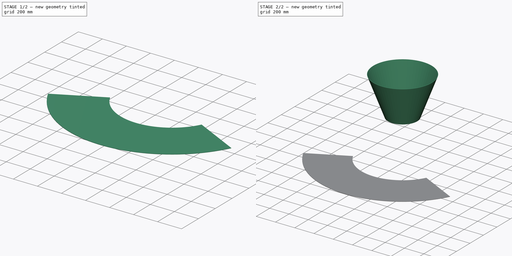
[diagram: build sequence overview — one tinted view per stage of 2, left to right]
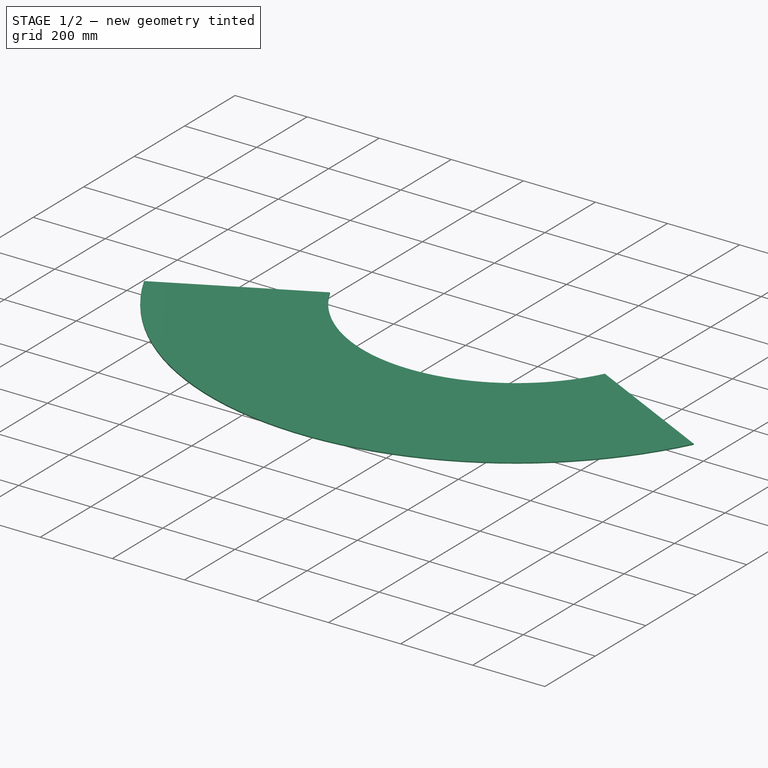
[diagram: stage 1 of 2 — iso view after this stage's code; geometry added in this stage tinted green]
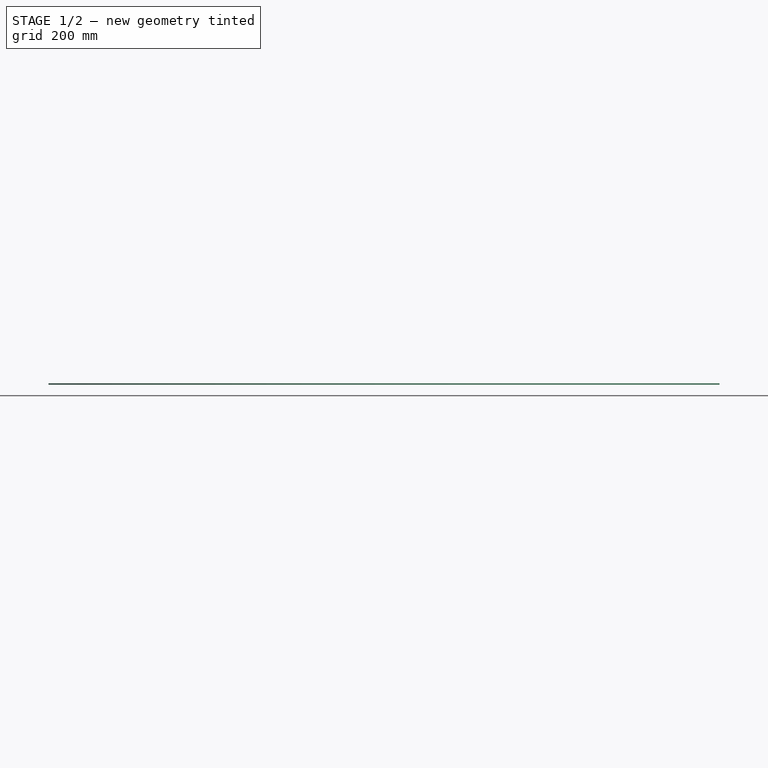
[diagram: stage 1 of 2 — front view after this stage's code; geometry added in this stage tinted green]
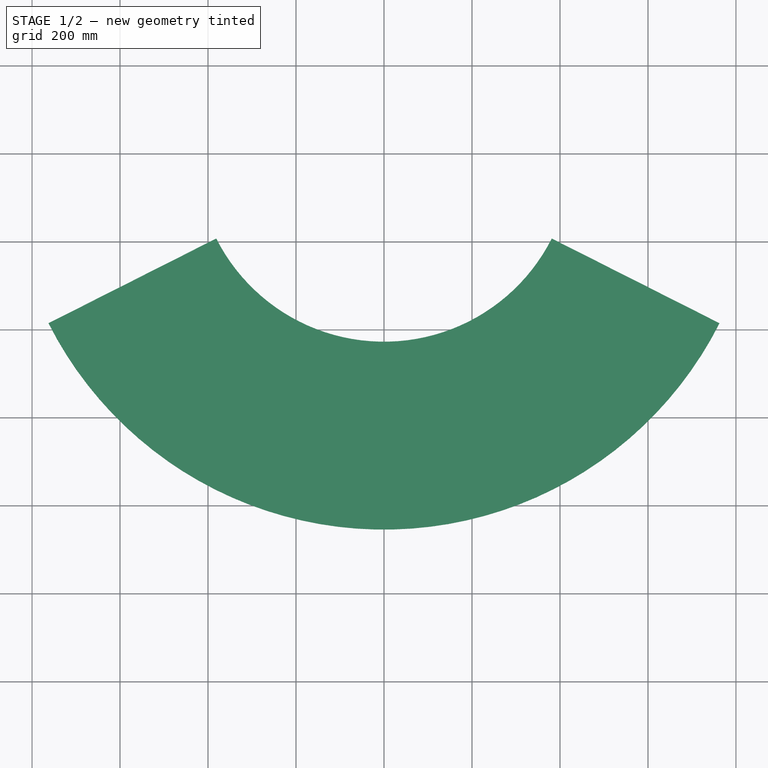
[diagram: stage 1 of 2 — top view after this stage's code; geometry added in this stage tinted green]
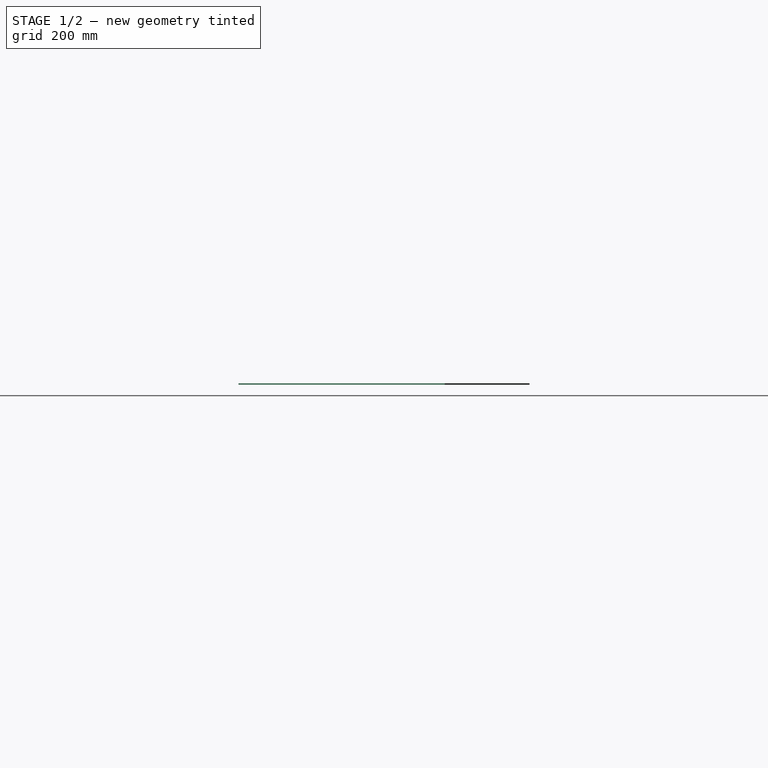
[diagram: stage 1 of 2 — right view after this stage's code; geometry added in this stage tinted green]
FCSTD DOCUMENT  (FreeCAD 0.19R17646 (Git))
Label: PLANIFICATION CONE TRUNK
License: All rights reserved
LicenseURL: http://en.wikipedia.org/wiki/All_rights_reserved
objects: Sketcher::SketchObject×2, PartDesign::Body×2, Spreadsheet::Sheet×1, PartDesign::Revolution×1, PartDesign::Pad×1
note: 8 computed .brp shape members not serialized (recipe doc carries the construction recipe); baked Part::Feature solids carry a one-line shape summary decoded from their .brp

FEATURE [PartDesign::Body] Body
  Group = -> [Sketch,Revolution]
  Origin = -> Origin
  Tip = -> Revolution
FEATURE [PartDesign::Pad] Pad
  Length = 3
  Length2 = 100
  Profile = -> Sketch001
  Type = 0
  expr: Length = Spreadsheet.t1
FEATURE [PartDesign::Body] Body001
  Group = -> [Sketch001,Pad]
  Origin = -> Origin001
  Tip = -> Pad
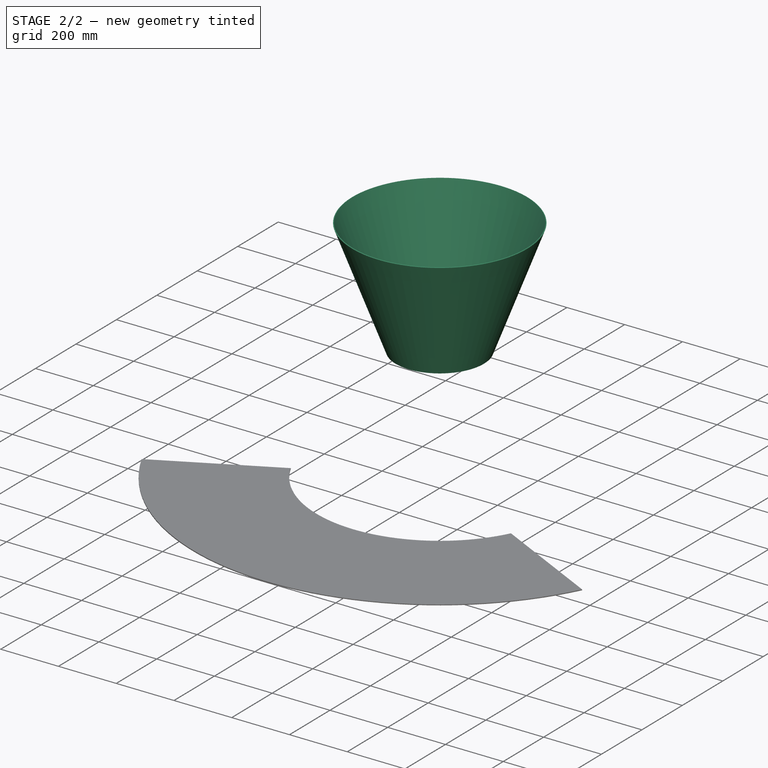
[diagram: stage 2 of 2 — iso view after this stage's code; geometry added in this stage tinted green]
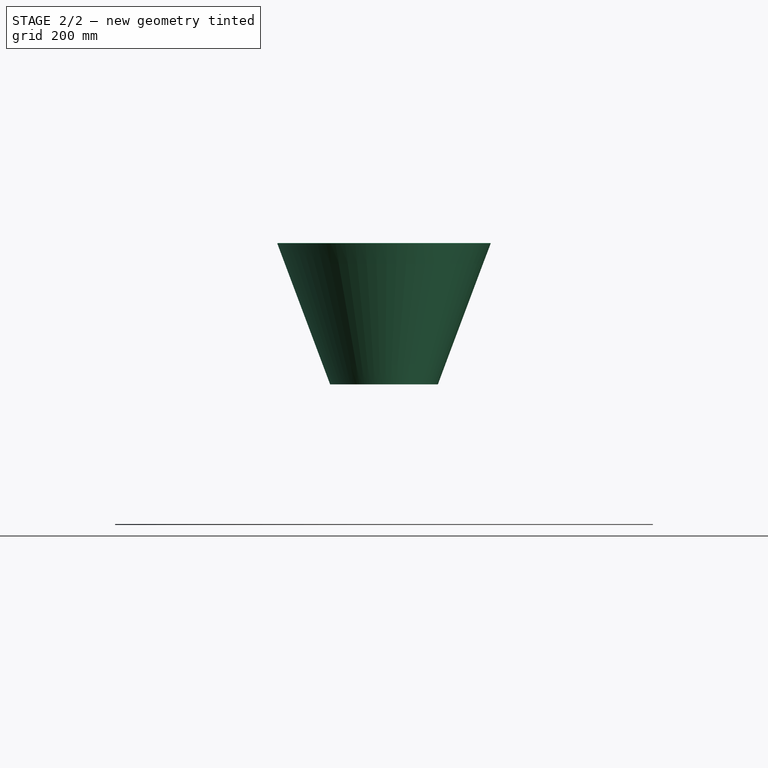
[diagram: stage 2 of 2 — front view after this stage's code; geometry added in this stage tinted green]
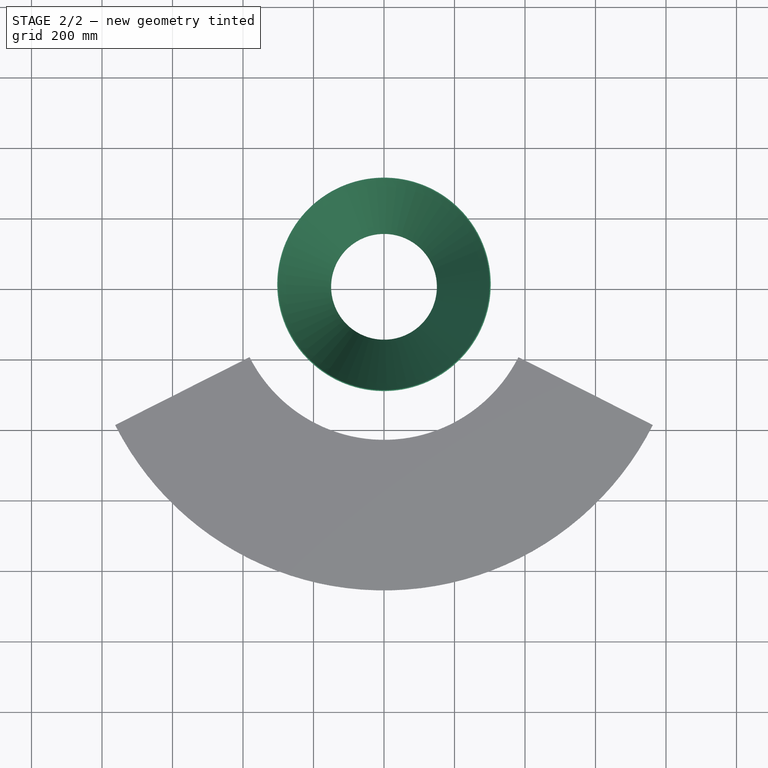
[diagram: stage 2 of 2 — top view after this stage's code; geometry added in this stage tinted green]
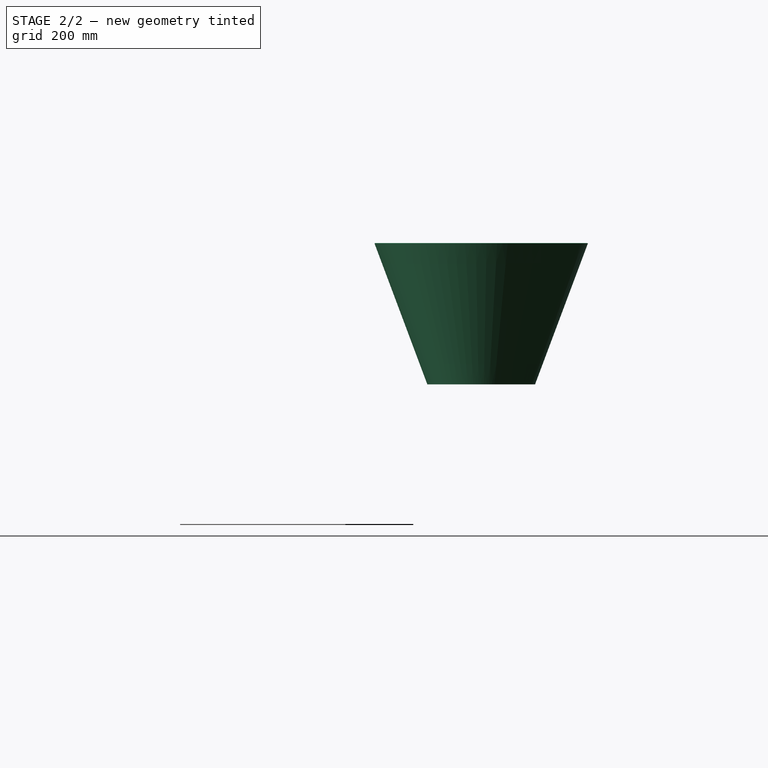
[diagram: stage 2 of 2 — right view after this stage's code; geometry added in this stage tinted green]
FEATURE [Sketcher::SketchObject] Sketch
  MapMode = 5
  Placement = pos=(0,0,0) rot=(1,0,0;1.5708rad)
  Support = -> [XZ_Plane]
  expr: Constraints[7] = Spreadsheet.t1
  expr: Constraints[12] = Spreadsheet.h1
  expr: Constraints[8] = Spreadsheet.r2
  expr: Constraints[9] = Spreadsheet.r1
  sketch-geometry (5):
    g0: LineSegment StartX=-300 StartY=800 StartZ=0 EndX=-150 EndY=400 EndZ=0
    g1: LineSegment StartX=-150 StartY=400 StartZ=0 EndX=-152.809 EndY=398.947 EndZ=0
    g2: LineSegment StartX=-152.809 StartY=398.947 StartZ=0 EndX=-302.809 EndY=798.947 EndZ=0
    g3: LineSegment StartX=-302.809 StartY=798.947 StartZ=0 EndX=-300 EndY=800 EndZ=0
    g4: LineSegment [constr] StartX=-150 StartY=400 StartZ=0 EndX=0 EndY=0 EndZ=0
  constraints (14):
    c: Coincident(g0,g1)
    c: Coincident(g1,g2)
    c: Coincident(g2,g3)
    c: Coincident(g0,g3)
    c: Parallel(g0,g2)
    c: Parallel(g1,g3)
    c: Perpendicular(g3,g0)
    c: Distance(g3) = 3
    c: DistanceX(g0,g-1) = 150
    c: DistanceX(g0,g-1) = 300
    c: Coincident(g4,g0)
    c: Coincident(g4,g-1)
    c: DistanceY(g0,g0) = 400
    c: Perpendicular(g4,g1)
FEATURE [Sketcher::SketchObject] Sketch001
  MapMode = 5
  Support = -> [XY_Plane001]
  expr: Constraints[11] = Spreadsheet.beta
  expr: Constraints[6] = Spreadsheet.r4
  expr: Constraints[7] = Spreadsheet.r3
  sketch-geometry (4):
    g0: ArcOfCircle CenterX=0 CenterY=0 CenterZ=0 NormalX=0 NormalY=0 NormalZ=1 AngleXU=0 Radius=427.2 StartAngle=3.6093 EndAngle=5.81548
    g1: ArcOfCircle CenterX=0 CenterY=0 CenterZ=0 NormalX=0 NormalY=0 NormalZ=1 AngleXU=0 Radius=854.4 StartAngle=3.6093 EndAngle=5.81548
    g2: LineSegment StartX=-762.641 StartY=-385.2 StartZ=0 EndX=-381.32 EndY=-192.6 EndZ=0
    g3: LineSegment StartX=381.32 StartY=-192.6 StartZ=0 EndX=762.641 EndY=-385.2 EndZ=0
  constraints (12):
    c: Coincident(g0,g-1)
    c: Coincident(g1,g0)
    c: Coincident(g0,g2)
    c: Coincident(g1,g2)
    c: Coincident(g0,g3)
    c: Coincident(g1,g3)
    c: Radius(g0) = 427.2
    c: Radius(g1) = 854.4
    c: Perpendicular(g1,g2)
    c: Perpendicular(g0,g3)
    c: Symmetric(g0,g0,g-2)
    c: Angle(g-2,g2) = 2.03851
FEATURE [Spreadsheet::Sheet] Spreadsheet
  cells = A1=Planificaion Cone Trunk; A2=Larger diameter =; B2=600; C2=mm; D2=r1=; E2(r1)==B2 / 2; A3=Smaller diameter =; B3=300; C3=mm; D3=r2=; E3(r2)==B3 / 2; A4=Height =; B4=400; C4=mm; D4=h1=; E4(h1)==B4; A5=Thickness =; B5=3; C5=mm; D5=t1=; E5(t1)==B5; D6=alfa =; E6==atan((E2 - E3) / E4); D7=r3=; E7(r3)==E2 / sin(E6); D8=r4=; E8(r4)==E3 / sin(E6); D9=beta =; E9(beta)==180 - E2 / E7 * 180
FEATURE [PartDesign::Revolution] Revolution
  Angle = 360
  Axis = (0,-2e-16,1)
  Base = (0,0,0)
  Placement = pos=(0,0,0) rot=(1,0,0;1.5708rad)
  Profile = -> Sketch
  ReferenceAxis = -> Sketch [V_Axis]
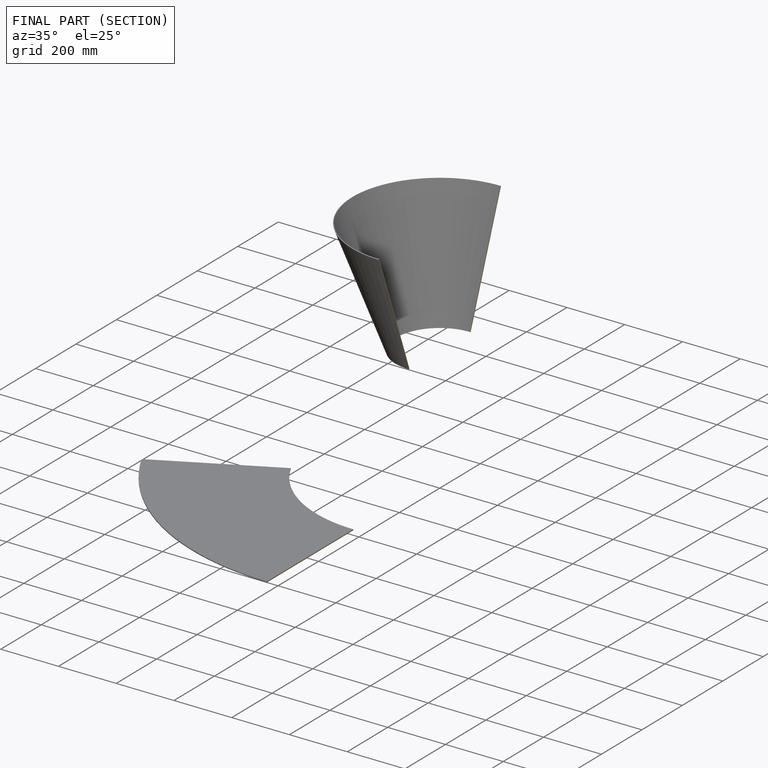
[diagram: finished part — half-section view (interior)]
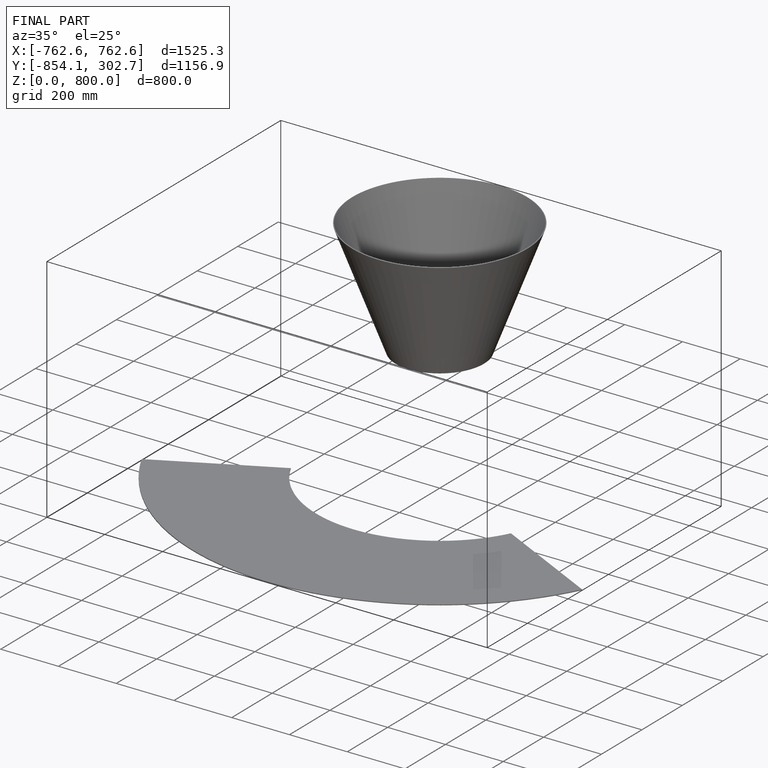
[diagram: finished part — iso view with bounding-box wireframe]
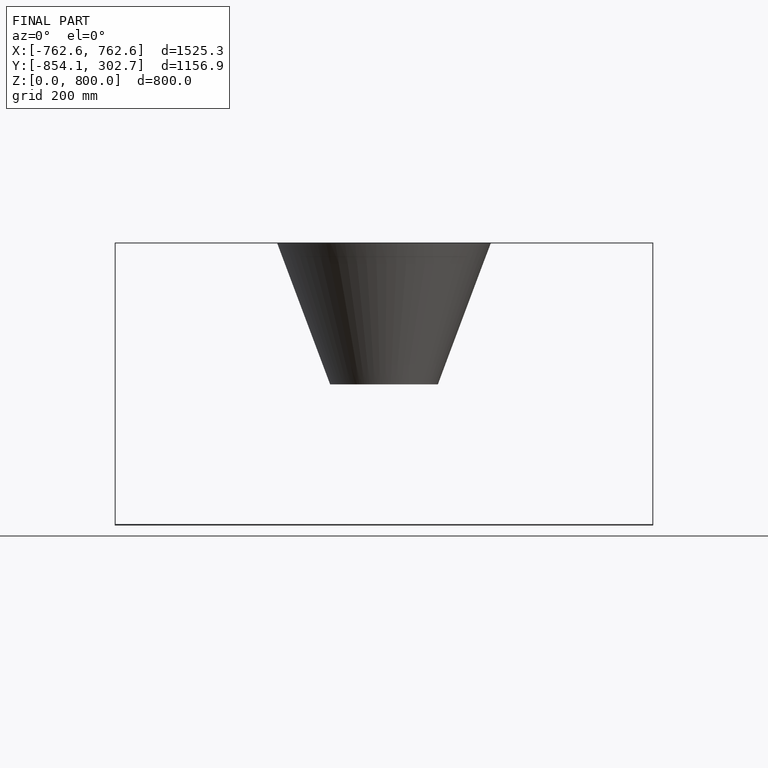
[diagram: finished part — front view with bounding-box wireframe]
